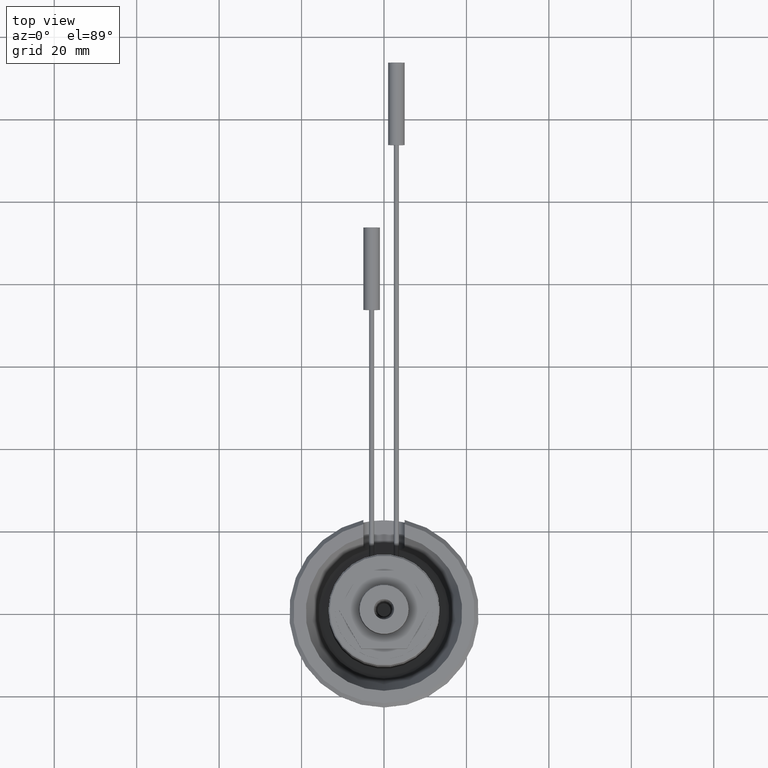
[diagram: clean part render]
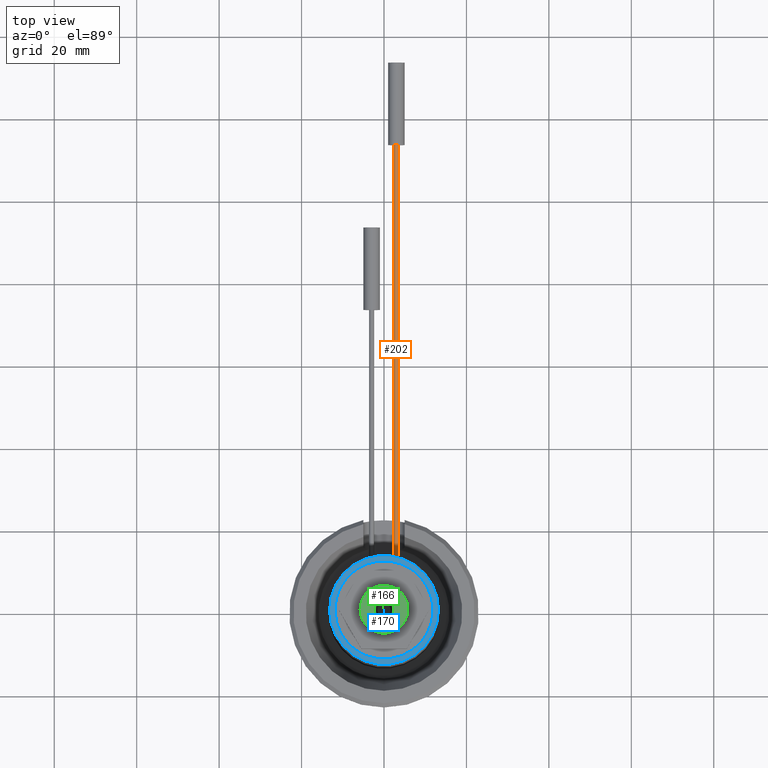
[diagram: same view with three faces highlighted in distinct colors, each labeled with its STEP entity id]
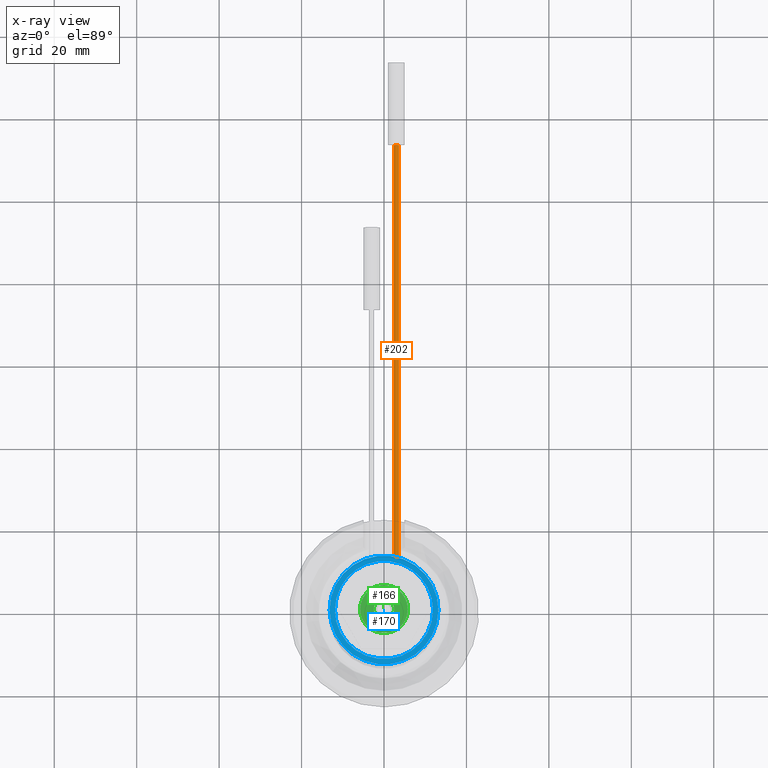
[diagram: x-ray of the same camera — body ghosted, the three highlighted faces saturated]
A machine part, top view with three faces highlighted in distinct colors.
The next image is the same camera in x-ray (body ghosted, the three faces saturated) — at least one of them is partly hidden behind the body in this view.
Their STEP definitions:

[orange] entity #202 — the highlighted cylindrical surface (bore or boss wall) has radius 0.6 mm, axis along (0, -1, 0).
#102=CYLINDRICAL_SURFACE('',#1089,0.6);
#202=ADVANCED_FACE('',(#376,#377),#102,.T.);
#376=FACE_BOUND('',#468,.T.);
#377=FACE_BOUND('',#469,.T.);
#468=EDGE_LOOP('',(#704));
#469=EDGE_LOOP('',(#705));
#704=ORIENTED_EDGE('',*,*,#914,.F.);
#705=ORIENTED_EDGE('',*,*,#915,.T.);
#796=VERTEX_POINT('',#1755);
#797=VERTEX_POINT('',#1757);
#914=EDGE_CURVE('',#796,#796,#970,.T.);
#915=EDGE_CURVE('',#797,#797,#971,.T.);
#970=CIRCLE('',#1087,0.6);
#971=CIRCLE('',#1088,0.6);
#1087=AXIS2_PLACEMENT_3D('',#1754,#1366,#1367);
#1088=AXIS2_PLACEMENT_3D('',#1756,#1368,#1369);
#1089=AXIS2_PLACEMENT_3D('',#1758,#1370,#1371);
#1366=DIRECTION('',(0.,1.,0.));
#1367=DIRECTION('',(1.,0.,0.));
#1368=DIRECTION('',(0.,1.,0.));
#1369=DIRECTION('',(1.,0.,0.));
#1370=DIRECTION('',(0.,-1.,0.));
#1371=DIRECTION('',(0.,0.,-1.));
#1754=CARTESIAN_POINT('',(3.,113.5,18.5));
#1755=CARTESIAN_POINT('',(3.6,113.5,18.5));
#1756=CARTESIAN_POINT('',(3.,13.5,18.5));
#1757=CARTESIAN_POINT('',(3.6,13.5,18.5));
#1758=CARTESIAN_POINT('',(3.,113.5,18.5));

[blue] entity #170 — the highlighted planar face has unit normal (0, 0, -1).
#170=ADVANCED_FACE('',(#358,#359),#217,.F.);
#217=PLANE('',#1046);
#358=FACE_BOUND('',#427,.T.);
#359=FACE_BOUND('',#428,.T.);
#427=EDGE_LOOP('',(#592));
#428=EDGE_LOOP('',(#593));
#592=ORIENTED_EDGE('',*,*,#888,.T.);
#593=ORIENTED_EDGE('',*,*,#887,.F.);
#781=VERTEX_POINT('',#1650);
#782=VERTEX_POINT('',#1653);
#887=EDGE_CURVE('',#781,#781,#959,.T.);
#888=EDGE_CURVE('',#782,#782,#960,.T.);
#959=CIRCLE('',#1043,11.9);
#960=CIRCLE('',#1045,13.2);
#1043=AXIS2_PLACEMENT_3D('',#1649,#1272,#1273);
#1045=AXIS2_PLACEMENT_3D('',#1652,#1276,#1277);
#1046=AXIS2_PLACEMENT_3D('',#1654,#1278,#1279);
#1272=DIRECTION('',(0.,0.,1.));
#1273=DIRECTION('',(1.,0.,0.));
#1276=DIRECTION('',(0.,0.,1.));
#1277=DIRECTION('',(-1.,0.,0.));
#1278=DIRECTION('',(0.,0.,-1.));
#1279=DIRECTION('',(-1.,0.,0.));
#1649=CARTESIAN_POINT('',(0.,0.,59.5));
#1650=CARTESIAN_POINT('',(11.9,0.,59.5));
#1652=CARTESIAN_POINT('',(0.,0.,59.5));
#1653=CARTESIAN_POINT('',(-13.2,0.,59.5));
#1654=CARTESIAN_POINT('',(-13.5,0.,59.5));

[green] entity #166 — the highlighted planar face has unit normal (0, 0, -1).
#166=ADVANCED_FACE('',(#350,#351),#215,.F.);
#215=PLANE('',#1037);
#350=FACE_BOUND('',#419,.T.);
#351=FACE_BOUND('',#420,.T.);
#419=EDGE_LOOP('',(#573));
#420=EDGE_LOOP('',(#574));
#573=ORIENTED_EDGE('',*,*,#877,.T.);
#574=ORIENTED_EDGE('',*,*,#876,.F.);
#776=VERTEX_POINT('',#1630);
#777=VERTEX_POINT('',#1633);
#876=EDGE_CURVE('',#776,#776,#954,.T.);
#877=EDGE_CURVE('',#777,#777,#955,.T.);
#954=CIRCLE('',#1034,2.4447030463428);
#955=CIRCLE('',#1036,5.8);
#1034=AXIS2_PLACEMENT_3D('',#1629,#1248,#1249);
#1036=AXIS2_PLACEMENT_3D('',#1632,#1252,#1253);
#1037=AXIS2_PLACEMENT_3D('',#1634,#1254,#1255);
#1248=DIRECTION('',(0.,0.,1.));
#1249=DIRECTION('',(1.,0.,0.));
#1252=DIRECTION('',(0.,0.,1.));
#1253=DIRECTION('',(-1.,0.,0.));
#1254=DIRECTION('',(0.,0.,-1.));
#1255=DIRECTION('',(-1.,0.,0.));
#1629=CARTESIAN_POINT('',(0.,0.,70.));
#1630=CARTESIAN_POINT('',(2.4447030463428,0.,70.));
#1632=CARTESIAN_POINT('',(0.,0.,70.));
#1633=CARTESIAN_POINT('',(-5.8,0.,70.));
#1634=CARTESIAN_POINT('',(-6.,0.,70.));